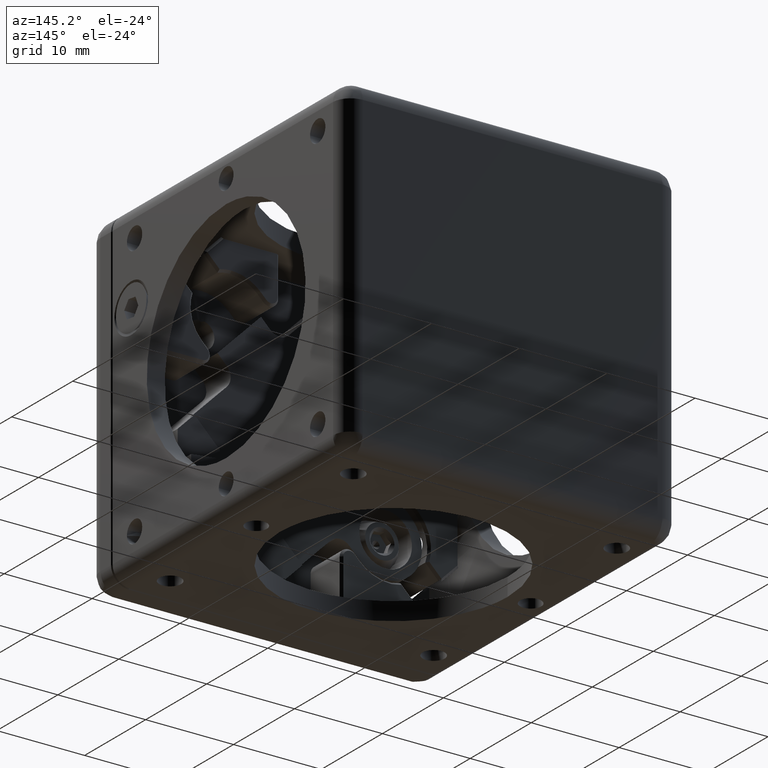
[diagram: clean part render]
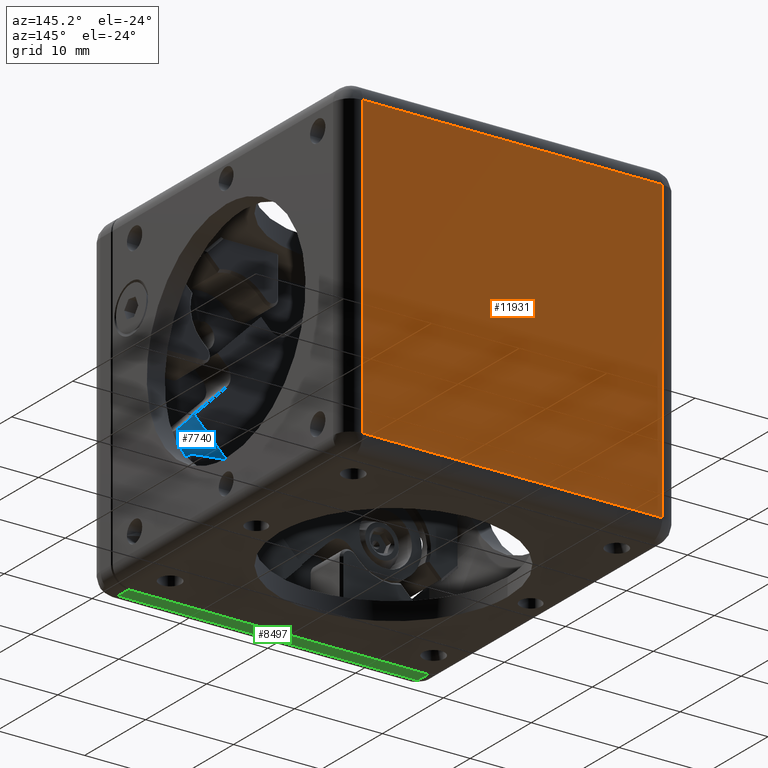
[diagram: same view with three faces highlighted in distinct colors, each labeled with its STEP entity id]
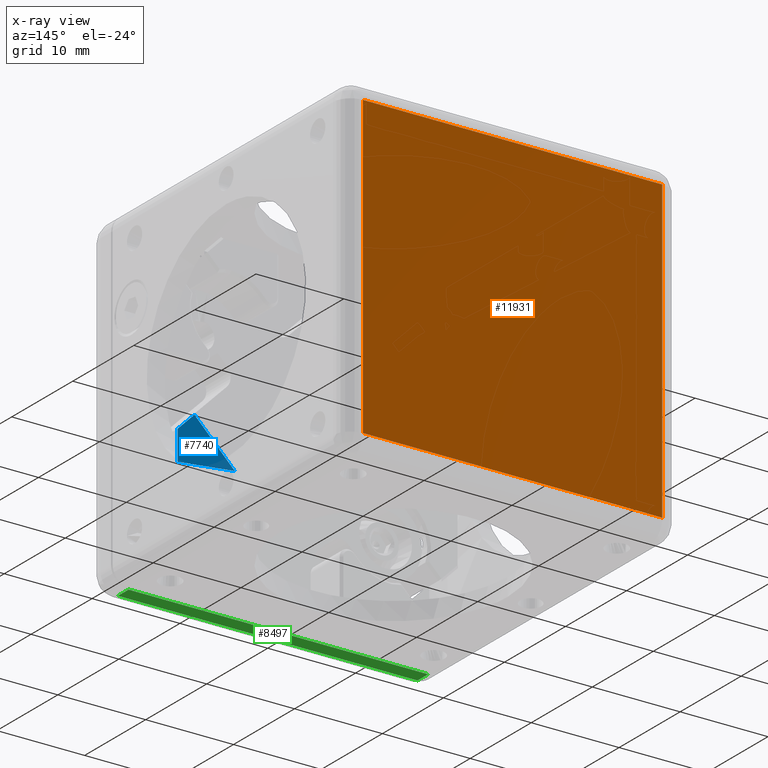
[diagram: x-ray of the same camera — body ghosted, the three highlighted faces saturated]
A machine part, auxiliary view with three faces highlighted in distinct colors.
The next image is the same camera in x-ray (body ghosted, the three faces saturated) — at least one of them is partly hidden behind the body in this view.
Their STEP definitions:

[orange] entity #11931 — the highlighted face is a freeform B-spline surface patch.
#39 = CARTESIAN_POINT ( 'NONE',  ( -17.05000000000000071, 40.09999999999999432, 17.05000000000000071 ) ) ;
#55 = ORIENTED_EDGE ( 'NONE', *, *, #5939, .F. ) ;
#93 = CARTESIAN_POINT ( 'NONE',  ( 17.05000000000000071, 40.09999999999999432, -17.05000000000000071 ) ) ;
#165 = CARTESIAN_POINT ( 'NONE',  ( -17.05000000000000071, 40.09999999999999432, 17.05000000000000071 ) ) ;
#480 = CARTESIAN_POINT ( 'NONE',  ( 17.05000000000000071, 40.09999999999999432, -17.05000000000000071 ) ) ;
#1080 = ORIENTED_EDGE ( 'NONE', *, *, #8836, .F. ) ;
#1678 = B_SPLINE_CURVE_WITH_KNOTS ( 'NONE', 1,
 ( #480, #6259 ),
 .UNSPECIFIED., .F., .F.,
 ( 2, 2 ),
 ( 0.000000000000000000, 1.000000000000000000 ),
 .UNSPECIFIED. ) ;
#2057 = CARTESIAN_POINT ( 'NONE',  ( 17.05000000000000071, 40.09999999999999432, 17.05000000000000071 ) ) ;
#2500 = EDGE_CURVE ( 'NONE', #5981, #9124, #9638, .T. ) ;
#3185 = CARTESIAN_POINT ( 'NONE',  ( 17.05000000000000071, 40.09999999999999432, -17.05000000000000071 ) ) ;
#4036 = CARTESIAN_POINT ( 'NONE',  ( -17.05000000000000071, 40.09999999999999432, -17.05000000000000071 ) ) ;
#4276 = ORIENTED_EDGE ( 'NONE', *, *, #12479, .F. ) ;
#5147 = VERTEX_POINT ( 'NONE', #93 ) ;
#5155 = CARTESIAN_POINT ( 'NONE',  ( 17.05000000000000071, 40.09999999999999432, 17.05000000000000071 ) ) ;
#5252 = CARTESIAN_POINT ( 'NONE',  ( -17.05000000000000071, 40.09999999999999432, -17.05000000000000071 ) ) ;
#5618 = CARTESIAN_POINT ( 'NONE',  ( -17.05000000000000071, 40.09999999999999432, -17.05000000000000071 ) ) ;
#5939 = EDGE_CURVE ( 'NONE', #7979, #5147, #8952, .T. ) ;
#5981 = VERTEX_POINT ( 'NONE', #5155 ) ;
#6259 = CARTESIAN_POINT ( 'NONE',  ( 17.05000000000000071, 40.09999999999999432, 17.05000000000000071 ) ) ;
#7694 = ORIENTED_EDGE ( 'NONE', *, *, #2500, .F. ) ;
#7979 = VERTEX_POINT ( 'NONE', #5618 ) ;
#8056 = FACE_OUTER_BOUND ( 'NONE', #10273, .T. ) ;
#8284 = B_SPLINE_SURFACE_WITH_KNOTS ( 'NONE', 1, 1, ( 
 ( #2057, #165 ),
 ( #11863, #4036 ) ),
 .UNSPECIFIED., .F., .F., .F.,
 ( 2, 2 ),
 ( 2, 2 ),
 ( 0.000000000000000000, 1.000000000000000000 ),
 ( 0.000000000000000000, 1.000000000000000000 ),
 .UNSPECIFIED. ) ;
#8682 = CARTESIAN_POINT ( 'NONE',  ( 17.05000000000000071, 40.09999999999999432, 17.05000000000000071 ) ) ;
#8836 = EDGE_CURVE ( 'NONE', #9124, #7979, #9251, .T. ) ;
#8952 = B_SPLINE_CURVE_WITH_KNOTS ( 'NONE', 1,
 ( #9055, #3185 ),
 .UNSPECIFIED., .F., .F.,
 ( 2, 2 ),
 ( 0.000000000000000000, 1.000000000000000000 ),
 .UNSPECIFIED. ) ;
#9055 = CARTESIAN_POINT ( 'NONE',  ( -17.05000000000000071, 40.09999999999999432, -17.05000000000000071 ) ) ;
#9124 = VERTEX_POINT ( 'NONE', #39 ) ;
#9251 = B_SPLINE_CURVE_WITH_KNOTS ( 'NONE', 1,
 ( #9913, #5252 ),
 .UNSPECIFIED., .F., .F.,
 ( 2, 2 ),
 ( 0.000000000000000000, 1.000000000000000000 ),
 .UNSPECIFIED. ) ;
#9638 = B_SPLINE_CURVE_WITH_KNOTS ( 'NONE', 1,
 ( #8682, #12554 ),
 .UNSPECIFIED., .F., .F.,
 ( 2, 2 ),
 ( 0.000000000000000000, 1.000000000000000000 ),
 .UNSPECIFIED. ) ;
#9913 = CARTESIAN_POINT ( 'NONE',  ( -17.05000000000000071, 40.09999999999999432, 17.05000000000000071 ) ) ;
#10273 = EDGE_LOOP ( 'NONE', ( #1080, #7694, #4276, #55 ) ) ;
#11863 = CARTESIAN_POINT ( 'NONE',  ( 17.05000000000000071, 40.09999999999999432, -17.05000000000000071 ) ) ;
#11931 = ADVANCED_FACE ( 'NONE', ( #8056 ), #8284, .T. ) ;
#12479 = EDGE_CURVE ( 'NONE', #5147, #5981, #1678, .T. ) ;
#12554 = CARTESIAN_POINT ( 'NONE',  ( -17.05000000000000071, 40.09999999999999432, 17.05000000000000071 ) ) ;

[blue] entity #7740 — the highlighted face is a freeform B-spline surface patch.
#401 = EDGE_LOOP ( 'NONE', ( #4169, #2331, #1541, #9472 ) ) ;
#625 = B_SPLINE_CURVE_WITH_KNOTS ( 'NONE', 1,
 ( #6147, #6937 ),
 .UNSPECIFIED., .F., .F.,
 ( 2, 2 ),
 ( 0.000000000000000000, 1.000000000000000000 ),
 .UNSPECIFIED. ) ;
#781 = CARTESIAN_POINT ( 'NONE',  ( 16.97325092602599739, 7.200000000000000178, -5.838862363189309512 ) ) ;
#1152 = VERTEX_POINT ( 'NONE', #6319 ) ;
#1360 = EDGE_CURVE ( 'NONE', #2537, #3725, #1431, .T. ) ;
#1431 = B_SPLINE_CURVE_WITH_KNOTS ( 'NONE', 1,
 ( #4782, #2944 ),
 .UNSPECIFIED., .F., .F.,
 ( 2, 2 ),
 ( 0.000000000000000000, 1.000000000000000000 ),
 .UNSPECIFIED. ) ;
#1541 = ORIENTED_EDGE ( 'NONE', *, *, #11056, .T. ) ;
#1558 = CARTESIAN_POINT ( 'NONE',  ( 8.749174796757779760, 7.200000000000000178, -6.807174389346160481 ) ) ;
#1710 = EDGE_CURVE ( 'NONE', #3725, #1152, #10558, .T. ) ;
#1963 = CARTESIAN_POINT ( 'NONE',  ( 15.25455718367398994, 7.200000000000000178, -5.251539470735768766 ) ) ;
#2039 = CARTESIAN_POINT ( 'NONE',  ( 8.749174796757779760, 7.200000000000000178, -6.807174389346160481 ) ) ;
#2331 = ORIENTED_EDGE ( 'NONE', *, *, #7261, .T. ) ;
#2537 = VERTEX_POINT ( 'NONE', #8292 ) ;
#2705 = CARTESIAN_POINT ( 'NONE',  ( 12.34947968384720163, 7.200000000000000178, -10.46263360536810083 ) ) ;
#2944 = CARTESIAN_POINT ( 'NONE',  ( 15.25455718367400060, 7.200000000000000178, -4.120168620837285189 ) ) ;
#3070 = CARTESIAN_POINT ( 'NONE',  ( 13.08609638803526032, 7.200000000000000178, -7.278578910137186497 ) ) ;
#3101 = CARTESIAN_POINT ( 'NONE',  ( 15.25455718367400060, 7.200000000000000178, -4.120168620837285189 ) ) ;
#3363 = VERTEX_POINT ( 'NONE', #1558 ) ;
#3725 = VERTEX_POINT ( 'NONE', #3101 ) ;
#4121 = B_SPLINE_CURVE_WITH_KNOTS ( 'NONE', 3,
 ( #11788, #3070, #6213, #2039 ),
 .UNSPECIFIED., .F., .F.,
 ( 4, 4 ),
 ( 0.000000000000000000, 1.000000000000000000 ),
 .UNSPECIFIED. ) ;
#4169 = ORIENTED_EDGE ( 'NONE', *, *, #1710, .T. ) ;
#4782 = CARTESIAN_POINT ( 'NONE',  ( 13.34536887447030118, 7.200000000000000178, -2.210980311633595097 ) ) ;
#4959 = CARTESIAN_POINT ( 'NONE',  ( 15.25455718367399349, 7.200000000000000178, -6.382910320634244350 ) ) ;
#5426 = CARTESIAN_POINT ( 'NONE',  ( 13.34536887447030118, 7.200000000000000178, -2.210980311633599982 ) ) ;
#5563 = FACE_OUTER_BOUND ( 'NONE', #401, .T. ) ;
#5846 = CARTESIAN_POINT ( 'NONE',  ( 15.25455718367400060, 7.200000000000000178, -4.120168620837285189 ) ) ;
#6147 = CARTESIAN_POINT ( 'NONE',  ( 8.749174796757779760, 7.200000000000000178, -6.807174389346160481 ) ) ;
#6213 = CARTESIAN_POINT ( 'NONE',  ( 10.91763559239652004, 7.200000000000000178, -7.042876649741671713 ) ) ;
#6319 = CARTESIAN_POINT ( 'NONE',  ( 15.25455718367400060, 7.200000000000000178, -7.514281170532719045 ) ) ;
#6937 = CARTESIAN_POINT ( 'NONE',  ( 13.34536887447030118, 7.200000000000000178, -2.210980311633595097 ) ) ;
#7261 = EDGE_CURVE ( 'NONE', #1152, #3363, #4121, .T. ) ;
#7740 = ADVANCED_FACE ( 'NONE', ( #5563 ), #12222, .T. ) ;
#8292 = CARTESIAN_POINT ( 'NONE',  ( 13.34536887447030118, 7.200000000000000178, -2.210980311633595097 ) ) ;
#9452 = CARTESIAN_POINT ( 'NONE',  ( 8.721597632291510749, 7.200000000000000178, -6.834751553812440150 ) ) ;
#9472 = ORIENTED_EDGE ( 'NONE', *, *, #1360, .T. ) ;
#9612 = CARTESIAN_POINT ( 'NONE',  ( 15.25455718367400060, 7.200000000000000178, -7.514281170532719045 ) ) ;
#10558 = B_SPLINE_CURVE_WITH_KNOTS ( 'NONE', 3,
 ( #5846, #1963, #4959, #9612 ),
 .UNSPECIFIED., .F., .F.,
 ( 4, 4 ),
 ( 0.000000000000000000, 1.000000000000000000 ),
 .UNSPECIFIED. ) ;
#11056 = EDGE_CURVE ( 'NONE', #3363, #2537, #625, .T. ) ;
#11788 = CARTESIAN_POINT ( 'NONE',  ( 15.25455718367400060, 7.200000000000000178, -7.514281170532719045 ) ) ;
#12222 = B_SPLINE_SURFACE_WITH_KNOTS ( 'NONE', 1, 1, ( 
 ( #781, #5426 ),
 ( #2705, #9452 ) ),
 .UNSPECIFIED., .F., .F., .F.,
 ( 2, 2 ),
 ( 2, 2 ),
 ( 0.000000000000000000, 1.000000000000000000 ),
 ( 0.000000000000000000, 1.000000000000000000 ),
 .UNSPECIFIED. ) ;

[green] entity #8497 — the highlighted face is a freeform B-spline surface patch.
#131 = B_SPLINE_SURFACE_WITH_KNOTS ( 'NONE', 1, 1, ( 
 ( #9814, #3893 ),
 ( #7014, #6831 ) ),
 .UNSPECIFIED., .F., .F., .F.,
 ( 2, 2 ),
 ( 2, 2 ),
 ( 0.000000000000000000, 1.000000000000000000 ),
 ( 0.000000000000000000, 1.000000000000000000 ),
 .UNSPECIFIED. ) ;
#343 = VERTEX_POINT ( 'NONE', #5451 ) ;
#616 = EDGE_CURVE ( 'NONE', #343, #9113, #9404, .T. ) ;
#915 = CARTESIAN_POINT ( 'NONE',  ( 17.05000000000000071, 1.750000000000000000, -19.05000000000000071 ) ) ;
#972 = CARTESIAN_POINT ( 'NONE',  ( 17.05000000000000071, 1.750000000000000000, -19.05000000000000071 ) ) ;
#2694 = VERTEX_POINT ( 'NONE', #3686 ) ;
#2774 = CARTESIAN_POINT ( 'NONE',  ( 17.05000000000000071, 1.750000000000000000, -19.05000000000000071 ) ) ;
#3611 = CARTESIAN_POINT ( 'NONE',  ( -17.05000000000000071, 1.750000000000000000, -19.05000000000000071 ) ) ;
#3686 = CARTESIAN_POINT ( 'NONE',  ( -17.05000000000000071, 8.156113069147099176E-17, -19.05000000000000071 ) ) ;
#3893 = CARTESIAN_POINT ( 'NONE',  ( -17.05000000000000071, 1.750000000000000000, -19.05000000000000071 ) ) ;
#4251 = CARTESIAN_POINT ( 'NONE',  ( -17.05000000000000071, 8.156113069147099176E-17, -19.05000000000000071 ) ) ;
#5451 = CARTESIAN_POINT ( 'NONE',  ( 17.05000000000000071, 8.156113069147099176E-17, -19.05000000000000071 ) ) ;
#5814 = ORIENTED_EDGE ( 'NONE', *, *, #11872, .F. ) ;
#6593 = CARTESIAN_POINT ( 'NONE',  ( 17.05000000000000071, 8.156113069147099176E-17, -19.05000000000000071 ) ) ;
#6831 = CARTESIAN_POINT ( 'NONE',  ( -17.05000000000000071, 0.000000000000000000, -19.05000000000000071 ) ) ;
#7014 = CARTESIAN_POINT ( 'NONE',  ( 17.05000000000000071, 0.000000000000000000, -19.05000000000000071 ) ) ;
#7165 = B_SPLINE_CURVE_WITH_KNOTS ( 'NONE', 1,
 ( #12305, #6593 ),
 .UNSPECIFIED., .F., .F.,
 ( 2, 2 ),
 ( 0.000000000000000000, 1.000000000000000000 ),
 .UNSPECIFIED. ) ;
#7397 = ORIENTED_EDGE ( 'NONE', *, *, #11622, .T. ) ;
#7745 = B_SPLINE_CURVE_WITH_KNOTS ( 'NONE', 1,
 ( #4251, #3611 ),
 .UNSPECIFIED., .F., .F.,
 ( 2, 2 ),
 ( -1.000000000000000000, 0.000000000000000000 ),
 .UNSPECIFIED. ) ;
#8497 = ADVANCED_FACE ( 'NONE', ( #11842 ), #131, .T. ) ;
#8648 = VERTEX_POINT ( 'NONE', #10116 ) ;
#9113 = VERTEX_POINT ( 'NONE', #915 ) ;
#9404 = B_SPLINE_CURVE_WITH_KNOTS ( 'NONE', 1,
 ( #9588, #2774 ),
 .UNSPECIFIED., .F., .F.,
 ( 2, 2 ),
 ( 0.000000000000000000, 1.000000000000000000 ),
 .UNSPECIFIED. ) ;
#9576 = ORIENTED_EDGE ( 'NONE', *, *, #616, .F. ) ;
#9588 = CARTESIAN_POINT ( 'NONE',  ( 17.05000000000000071, 8.156113069147099176E-17, -19.05000000000000071 ) ) ;
#9814 = CARTESIAN_POINT ( 'NONE',  ( 17.05000000000000071, 1.750000000000000000, -19.05000000000000071 ) ) ;
#9830 = CARTESIAN_POINT ( 'NONE',  ( -17.05000000000000071, 1.750000000000000000, -19.05000000000000071 ) ) ;
#10116 = CARTESIAN_POINT ( 'NONE',  ( -17.05000000000000071, 1.750000000000000000, -19.05000000000000071 ) ) ;
#10189 = EDGE_LOOP ( 'NONE', ( #7397, #11953, #9576, #5814 ) ) ;
#11262 = B_SPLINE_CURVE_WITH_KNOTS ( 'NONE', 1,
 ( #9830, #972 ),
 .UNSPECIFIED., .F., .F.,
 ( 2, 2 ),
 ( -1.000000000000000000, 0.000000000000000000 ),
 .UNSPECIFIED. ) ;
#11622 = EDGE_CURVE ( 'NONE', #2694, #8648, #7745, .T. ) ;
#11842 = FACE_OUTER_BOUND ( 'NONE', #10189, .T. ) ;
#11872 = EDGE_CURVE ( 'NONE', #2694, #343, #7165, .T. ) ;
#11915 = EDGE_CURVE ( 'NONE', #8648, #9113, #11262, .T. ) ;
#11953 = ORIENTED_EDGE ( 'NONE', *, *, #11915, .T. ) ;
#12305 = CARTESIAN_POINT ( 'NONE',  ( -17.05000000000000071, 8.156113069147099176E-17, -19.05000000000000071 ) ) ;